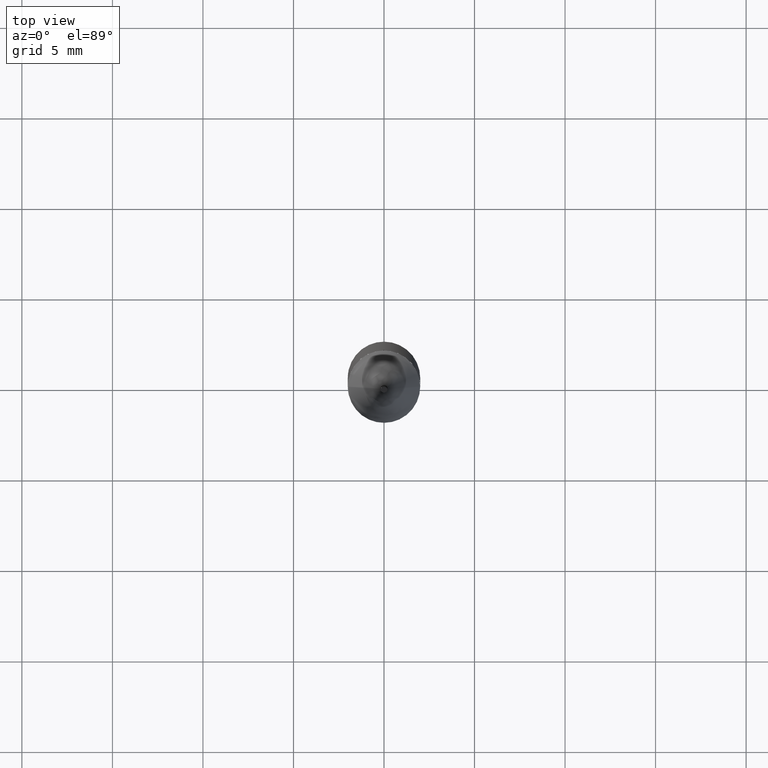
[diagram: clean part render]
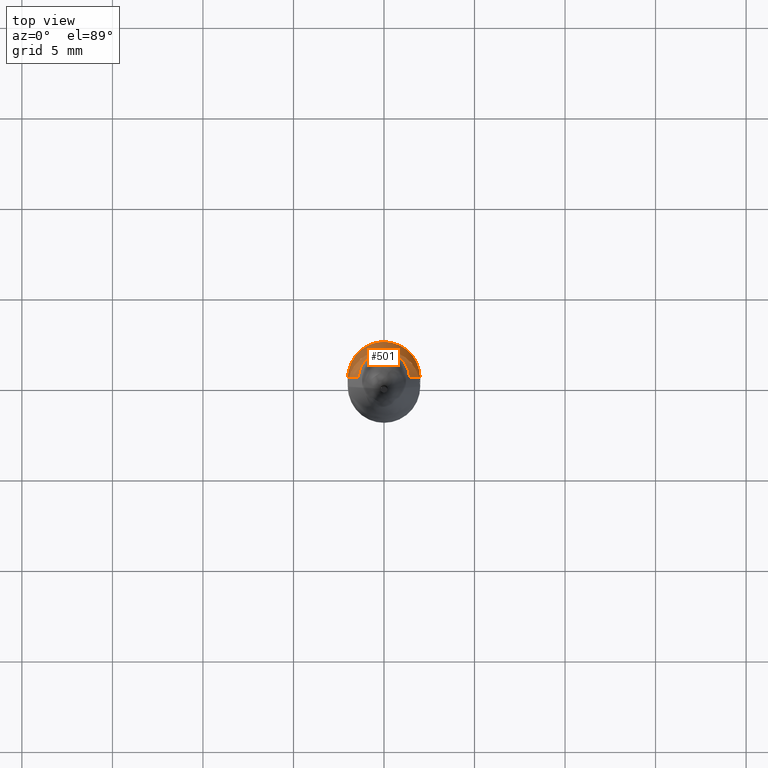
[diagram: same view with one face highlighted and labeled with its STEP entity id]
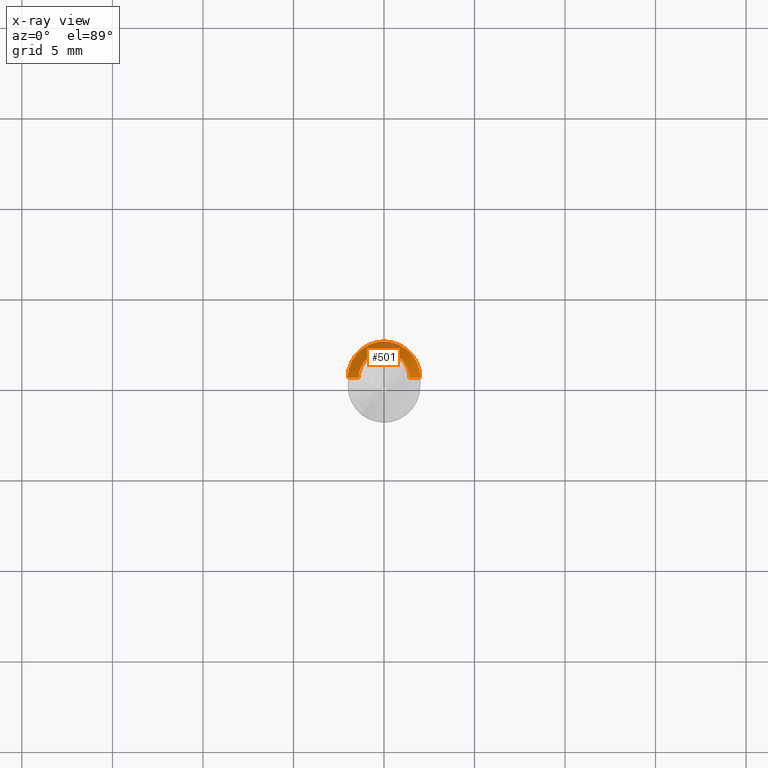
[diagram: x-ray of the same camera — body ghosted, the highlighted face saturated]
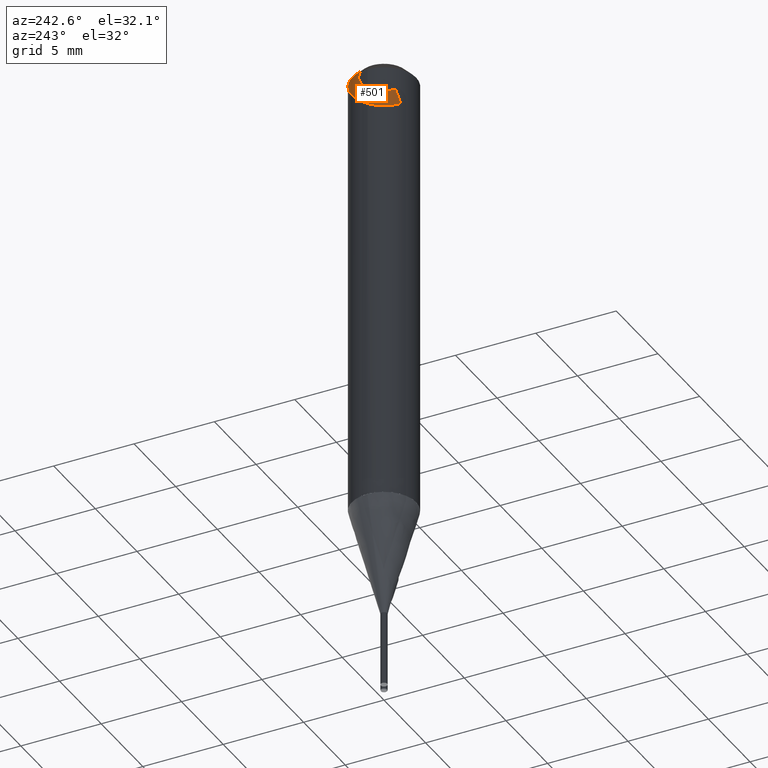
[diagram: same view with one face highlighted and labeled with its STEP entity id]
A machine part, top view. The second image highlights one B-rep face of the part: STEP entity #501.
The next image is the same camera in x-ray: the body ghosted, the highlighted face saturated — about 0% of this face is hidden behind the body in this view.
A second angle (auxiliary view) of the same face is appended — the face is thin or edge-on in the first view.
In plain terms, the highlighted face is a freeform B-spline surface patch.
Its self-contained STEP definition (entity closure, byte-faithful):
#230=CARTESIAN_POINT('',(2.0,0.0,27.682));
#231=CARTESIAN_POINT('',(2.0,2.0,27.682));
#232=CARTESIAN_POINT('',(0.0,2.0,27.682));
#233=CARTESIAN_POINT('',(-2.0,2.0,27.682));
#234=CARTESIAN_POINT('',(-2.0,0.0,27.682));
#235=CARTESIAN_POINT('',(1.4,0.0,28.282));
#236=CARTESIAN_POINT('',(1.4,1.4,28.282));
#237=CARTESIAN_POINT('',(0.0,1.4,28.282));
#238=CARTESIAN_POINT('',(-1.4,1.4,28.282));
#239=CARTESIAN_POINT('',(-1.4,0.0,28.282));
#482=(
BOUNDED_SURFACE()
B_SPLINE_SURFACE(1,2,(
(#230,#231,#232,#233,#234),
(#235,#236,#237,#238,#239)
), .UNSPECIFIED.,.F.,.F.,.F.)
B_SPLINE_SURFACE_WITH_KNOTS((2,2),(3,2,3),(
0.0,1.0),(
0.0,0.5,1.0), .UNSPECIFIED.)
GEOMETRIC_REPRESENTATION_ITEM()
RATIONAL_B_SPLINE_SURFACE(((1.0,0.707106781187,1.0,0.707106781187,1.0),
(1.0,0.707106781187,1.0,0.707106781187,1.0)
))
REPRESENTATION_ITEM('')
SURFACE()
);
#483=(
BOUNDED_CURVE()
B_SPLINE_CURVE(1,(#235,#230),.UNSPECIFIED.,.F.,.F.)
B_SPLINE_CURVE_WITH_KNOTS((2,2),
(0.0,1.0),.UNSPECIFIED.)
CURVE()
GEOMETRIC_REPRESENTATION_ITEM()
RATIONAL_B_SPLINE_CURVE((1.0,1.0))
REPRESENTATION_ITEM('')
);
#484=(
BOUNDED_CURVE()
B_SPLINE_CURVE(2,(#230,#231,#232,#233,#234),.UNSPECIFIED.,.F.,.F.)
B_SPLINE_CURVE_WITH_KNOTS((3,2,3),
(0.0,0.5,1.0),.UNSPECIFIED.)
CURVE()
GEOMETRIC_REPRESENTATION_ITEM()
RATIONAL_B_SPLINE_CURVE((1.0,0.707106781187,1.0,0.707106781187,1.0))
REPRESENTATION_ITEM('')
);
#485=(
BOUNDED_CURVE()
B_SPLINE_CURVE(1,(#234,#239),.UNSPECIFIED.,.F.,.F.)
B_SPLINE_CURVE_WITH_KNOTS((2,2),
(0.0,1.0),.UNSPECIFIED.)
CURVE()
GEOMETRIC_REPRESENTATION_ITEM()
RATIONAL_B_SPLINE_CURVE((1.0,1.0))
REPRESENTATION_ITEM('')
);
#486=(
BOUNDED_CURVE()
B_SPLINE_CURVE(2,(#239,#238,#237,#236,#235),.UNSPECIFIED.,.F.,.F.)
B_SPLINE_CURVE_WITH_KNOTS((3,2,3),
(0.0,0.5,1.0),.UNSPECIFIED.)
CURVE()
GEOMETRIC_REPRESENTATION_ITEM()
RATIONAL_B_SPLINE_CURVE((1.0,0.707106781187,1.0,0.707106781187,1.0))
REPRESENTATION_ITEM('')
);
#487=VERTEX_POINT('',#230);
#488=VERTEX_POINT('',#234);
#489=VERTEX_POINT('',#235);
#490=VERTEX_POINT('',#239);
#491=EDGE_CURVE('',#489,#487,#483,.T.);
#492=EDGE_CURVE('',#487,#488,#484,.T.);
#493=EDGE_CURVE('',#488,#490,#485,.T.);
#494=EDGE_CURVE('',#490,#489,#486,.T.);
#495=ORIENTED_EDGE('',*,*,#491,.T.);
#496=ORIENTED_EDGE('',*,*,#492,.T.);
#497=ORIENTED_EDGE('',*,*,#493,.T.);
#498=ORIENTED_EDGE('',*,*,#494,.T.);
#499=EDGE_LOOP('',(#495,#496,#497,#498));
#500=FACE_OUTER_BOUND('',#499,.T.);
#501=ADVANCED_FACE('',(#500),#482,.T.);